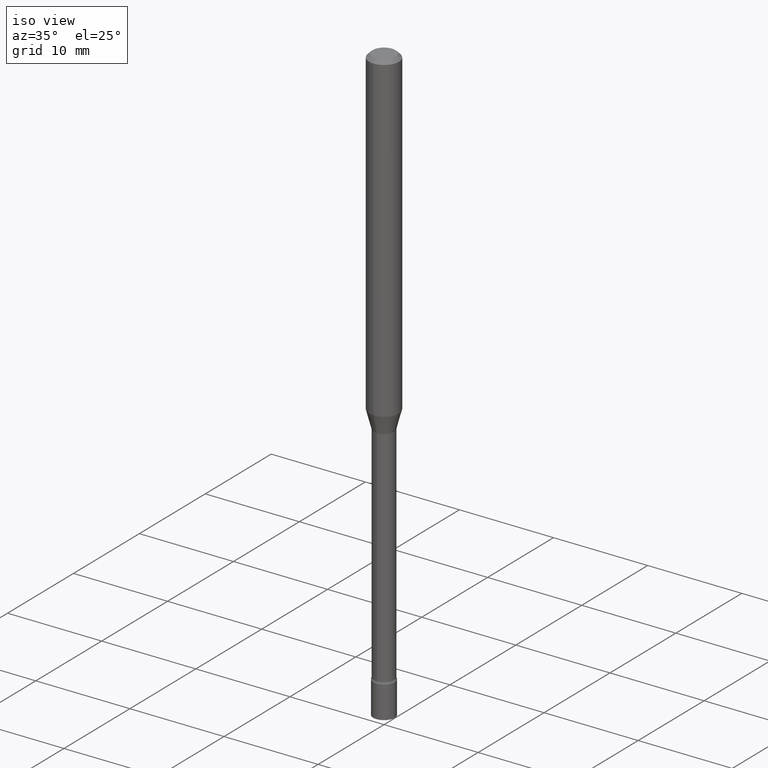
[diagram: clean part render]
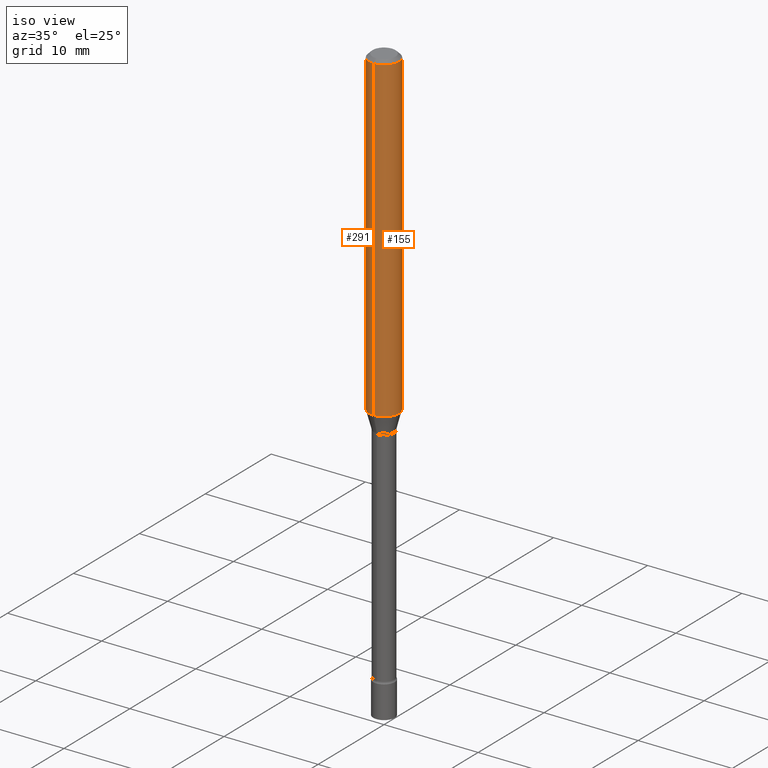
[diagram: same view with one multi-face feature highlighted, each face labeled with its STEP entity id]
A machine part, iso view. The highlighted faces form ONE feature: a constant-radius fillet chain: 2 tangent blend faces with common blend radius 1.5875 mm. The faces share edges in the B-rep.
Their STEP definitions:
[1] entity #291 (Cylinder):
#1 = ORIENTED_EDGE ( 'NONE', *, *, #379, .F. ) ;
#12 = DIRECTION ( 'NONE',  ( -6.982962677686265922E-15, -1.000000000000000000, 3.483106191921935554E-15 ) ) ;
#15 = CARTESIAN_POINT ( 'NONE',  ( 0.000000000000000000, 0.000000000000000000, 0.000000000000000000 ) ) ;
#42 = CARTESIAN_POINT ( 'NONE',  ( -4.364351673553584879E-16, -0.06250000000000466294, -1.344612573687108847 ) ) ;
#82 = EDGE_LOOP ( 'NONE', ( #101, #378, #351, #1 ) ) ;
#91 = DIRECTION ( 'NONE',  ( -2.445535940486029483E-29, 3.491385198703219756E-15, 1.000000000000000000 ) ) ;
#97 = CARTESIAN_POINT ( 'NONE',  ( 4.440892098500625669E-16, 0.06250000000000000000, -2.182115749189512101E-16 ) ) ;
#101 = ORIENTED_EDGE ( 'NONE', *, *, #373, .F. ) ;
#121 = CARTESIAN_POINT ( 'NONE',  ( -4.364351673553916201E-16, -0.06250000000000000000, 2.182115749189512101E-16 ) ) ;
#134 = CYLINDRICAL_SURFACE ( 'NONE', #239, 0.06250000000000000000 ) ;
#147 = CARTESIAN_POINT ( 'NONE',  ( -4.364351673553912750E-16, -0.06250000000000005551, -0.01499999999999981209 ) ) ;
#157 = EDGE_CURVE ( 'NONE', #176, #472, #235, .T. ) ;
#176 = VERTEX_POINT ( 'NONE', #42 ) ;
#194 = VECTOR ( 'NONE', #380, 39.37007874015748143 ) ;
#215 = VERTEX_POINT ( 'NONE', #324 ) ;
#219 = VERTEX_POINT ( 'NONE', #444 ) ;
#235 = LINE ( 'NONE', #121, #482 ) ;
#239 = AXIS2_PLACEMENT_3D ( 'NONE', #15, #253, #244 ) ;
#243 = DIRECTION ( 'NONE',  ( -2.445535940486029483E-29, 3.491385198703219756E-15, 1.000000000000000000 ) ) ;
#244 = DIRECTION ( 'NONE',  ( -6.982962677686265922E-15, -1.000000000000000000, 3.491385198703219362E-15 ) ) ;
#249 = FACE_OUTER_BOUND ( 'NONE', #82, .T. ) ;
#253 = DIRECTION ( 'NONE',  ( -2.445535940486029483E-29, 3.491385198703219756E-15, 1.000000000000000000 ) ) ;
#274 = CIRCLE ( 'NONE', #282, 0.06250000000000000000 ) ;
#282 = AXIS2_PLACEMENT_3D ( 'NONE', #420, #91, #12 ) ;
#291 = ADVANCED_FACE ( 'NONE', ( #249 ), #134, .T. ) ;
#311 = CARTESIAN_POINT ( 'NONE',  ( 3.288298374981245001E-29, -4.694560437761416498E-15, -1.344612573687109069 ) ) ;
#324 = CARTESIAN_POINT ( 'NONE',  ( 4.440892098500956497E-16, 0.06249999999999993755, -0.01500000000000024751 ) ) ;
#337 = LINE ( 'NONE', #97, #194 ) ;
#351 = ORIENTED_EDGE ( 'NONE', *, *, #157, .T. ) ;
#373 = EDGE_CURVE ( 'NONE', #219, #215, #337, .T. ) ;
#378 = ORIENTED_EDGE ( 'NONE', *, *, #488, .T. ) ;
#379 = EDGE_CURVE ( 'NONE', #215, #472, #274, .T. ) ;
#380 = DIRECTION ( 'NONE',  ( -2.445535940486029483E-29, 3.491385198703219756E-15, 1.000000000000000000 ) ) ;
#384 = DIRECTION ( 'NONE',  ( -6.982962677686265922E-15, -1.000000000000000000, 4.370956789862821150E-15 ) ) ;
#420 = CARTESIAN_POINT ( 'NONE',  ( 3.668303910729051459E-31, -5.237077798054840974E-17, -0.01500000000000003067 ) ) ;
#423 = CIRCLE ( 'NONE', #516, 0.06250000000000000000 ) ;
#444 = CARTESIAN_POINT ( 'NONE',  ( 4.440892098500956497E-16, 0.06249999999999533706, -1.344612573687109514 ) ) ;
#467 = DIRECTION ( 'NONE',  ( -2.445535940486029483E-29, 3.491385198703219756E-15, 1.000000000000000000 ) ) ;
#472 = VERTEX_POINT ( 'NONE', #147 ) ;
#482 = VECTOR ( 'NONE', #243, 39.37007874015748143 ) ;
#488 = EDGE_CURVE ( 'NONE', #219, #176, #423, .T. ) ;
#516 = AXIS2_PLACEMENT_3D ( 'NONE', #311, #467, #384 ) ;
[2] entity #155 (Cylinder):
#31 = EDGE_LOOP ( 'NONE', ( #231, #401, #428, #485 ) ) ;
#42 = CARTESIAN_POINT ( 'NONE',  ( -4.364351673553584879E-16, -0.06250000000000466294, -1.344612573687108847 ) ) ;
#97 = CARTESIAN_POINT ( 'NONE',  ( 4.440892098500625669E-16, 0.06250000000000000000, -2.182115749189512101E-16 ) ) ;
#98 = EDGE_CURVE ( 'NONE', #176, #219, #459, .T. ) ;
#107 = FACE_OUTER_BOUND ( 'NONE', #31, .T. ) ;
#112 = CARTESIAN_POINT ( 'NONE',  ( 3.668303910729051459E-31, -5.237077798054840974E-17, -0.01500000000000003067 ) ) ;
#121 = CARTESIAN_POINT ( 'NONE',  ( -4.364351673553916201E-16, -0.06250000000000000000, 2.182115749189512101E-16 ) ) ;
#147 = CARTESIAN_POINT ( 'NONE',  ( -4.364351673553912750E-16, -0.06250000000000005551, -0.01499999999999981209 ) ) ;
#155 = ADVANCED_FACE ( 'NONE', ( #107 ), #494, .T. ) ;
#157 = EDGE_CURVE ( 'NONE', #176, #472, #235, .T. ) ;
#176 = VERTEX_POINT ( 'NONE', #42 ) ;
#189 = DIRECTION ( 'NONE',  ( -2.445535940486029483E-29, 3.491385198703219756E-15, 1.000000000000000000 ) ) ;
#194 = VECTOR ( 'NONE', #380, 39.37007874015748143 ) ;
#208 = CIRCLE ( 'NONE', #265, 0.06250000000000000000 ) ;
#215 = VERTEX_POINT ( 'NONE', #324 ) ;
#219 = VERTEX_POINT ( 'NONE', #444 ) ;
#231 = ORIENTED_EDGE ( 'NONE', *, *, #98, .T. ) ;
#235 = LINE ( 'NONE', #121, #482 ) ;
#243 = DIRECTION ( 'NONE',  ( -2.445535940486029483E-29, 3.491385198703219756E-15, 1.000000000000000000 ) ) ;
#265 = AXIS2_PLACEMENT_3D ( 'NONE', #112, #189, #437 ) ;
#310 = DIRECTION ( 'NONE',  ( -2.445535940486029483E-29, 3.491385198703219756E-15, 1.000000000000000000 ) ) ;
#324 = CARTESIAN_POINT ( 'NONE',  ( 4.440892098500956497E-16, 0.06249999999999993755, -0.01500000000000024751 ) ) ;
#337 = LINE ( 'NONE', #97, #194 ) ;
#367 = DIRECTION ( 'NONE',  ( -2.445535940486029483E-29, 3.491385198703219756E-15, 1.000000000000000000 ) ) ;
#370 = AXIS2_PLACEMENT_3D ( 'NONE', #441, #367, #480 ) ;
#373 = EDGE_CURVE ( 'NONE', #219, #215, #337, .T. ) ;
#380 = DIRECTION ( 'NONE',  ( -2.445535940486029483E-29, 3.491385198703219756E-15, 1.000000000000000000 ) ) ;
#401 = ORIENTED_EDGE ( 'NONE', *, *, #373, .T. ) ;
#411 = AXIS2_PLACEMENT_3D ( 'NONE', #514, #310, #477 ) ;
#428 = ORIENTED_EDGE ( 'NONE', *, *, #438, .F. ) ;
#437 = DIRECTION ( 'NONE',  ( -6.982962677686265922E-15, -1.000000000000000000, 3.483106191921935554E-15 ) ) ;
#438 = EDGE_CURVE ( 'NONE', #472, #215, #208, .T. ) ;
#441 = CARTESIAN_POINT ( 'NONE',  ( 0.000000000000000000, 0.000000000000000000, 0.000000000000000000 ) ) ;
#444 = CARTESIAN_POINT ( 'NONE',  ( 4.440892098500956497E-16, 0.06249999999999533706, -1.344612573687109514 ) ) ;
#459 = CIRCLE ( 'NONE', #411, 0.06250000000000000000 ) ;
#472 = VERTEX_POINT ( 'NONE', #147 ) ;
#477 = DIRECTION ( 'NONE',  ( -6.982962677686265922E-15, -1.000000000000000000, 4.370956789862821150E-15 ) ) ;
#480 = DIRECTION ( 'NONE',  ( -6.982962677686265922E-15, -1.000000000000000000, 3.491385198703219362E-15 ) ) ;
#482 = VECTOR ( 'NONE', #243, 39.37007874015748143 ) ;
#485 = ORIENTED_EDGE ( 'NONE', *, *, #157, .F. ) ;
#494 = CYLINDRICAL_SURFACE ( 'NONE', #370, 0.06250000000000000000 ) ;
#514 = CARTESIAN_POINT ( 'NONE',  ( 3.288298374981245001E-29, -4.694560437761416498E-15, -1.344612573687109069 ) ) ;